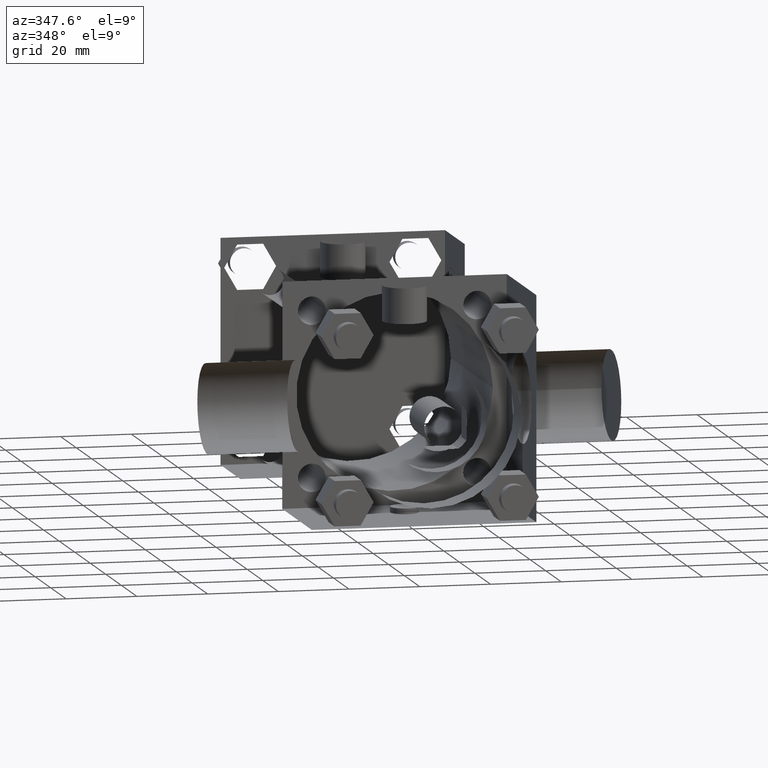
[diagram: clean part render]
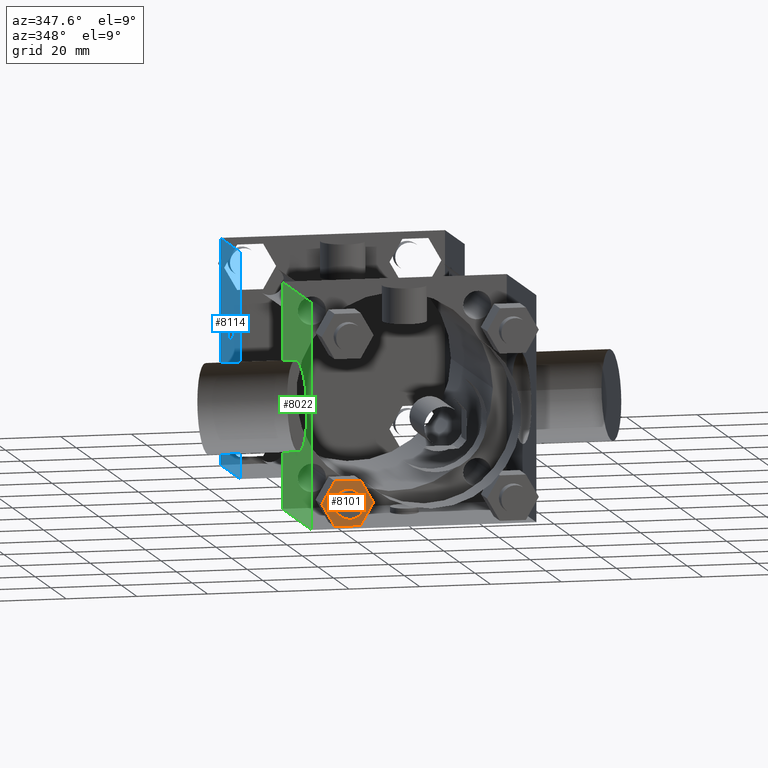
[diagram: same view with three faces highlighted in distinct colors, each labeled with its STEP entity id]
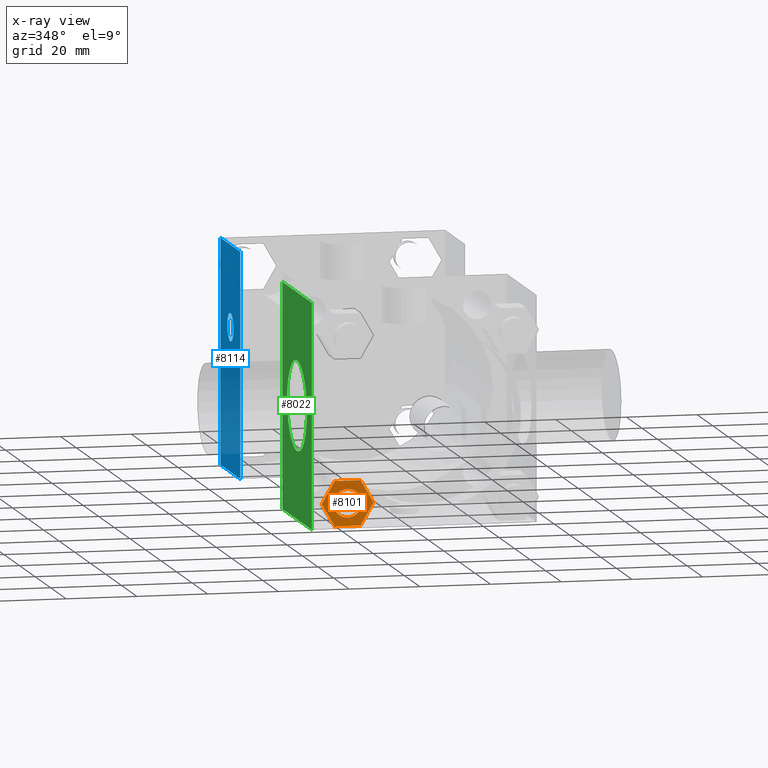
[diagram: x-ray of the same camera — body ghosted, the three highlighted faces saturated]
A machine part, auxiliary view with three faces highlighted in distinct colors.
The next image is the same camera in x-ray (body ghosted, the three faces saturated) — at least one of them is partly hidden behind the body in this view.
Their STEP definitions:

[orange] entity #8101 — the highlighted planar face has unit normal (0, -1, 0).
#4127=FACE_OUTER_BOUND('',#4129,.T.);
#4128=FACE_BOUND('',#4130,.T.);
#4129=EDGE_LOOP('',(#4131,#4132,#4133,#4134,#4135,#4136));
#4130=EDGE_LOOP('',(#4179));
#4131=ORIENTED_EDGE('',*,*,#4137,.T.);
#4132=ORIENTED_EDGE('',*,*,#4146,.T.);
#4133=ORIENTED_EDGE('',*,*,#4153,.T.);
#4134=ORIENTED_EDGE('',*,*,#4160,.T.);
#4135=ORIENTED_EDGE('',*,*,#4167,.T.);
#4136=ORIENTED_EDGE('',*,*,#4174,.T.);
#4137=EDGE_CURVE('',#4142,#4143,#4138,.T.);
#4138=LINE('',#4139,#4140);
#4139=CARTESIAN_POINT('',(-3.070034655E+001,1.746250000E+001,-2.336800000E+001));
#4140=VECTOR('',#4141,1.0E+000);
#4141=DIRECTION('',(5.0E-001,0.0E+000,-8.66025403784439E-001));
#4142=VERTEX_POINT('',#4144);
#4143=VERTEX_POINT('',#4145);
#4144=CARTESIAN_POINT('',(-3.070034655E+001,1.746250000E+001,-2.336800000E+001));
#4145=CARTESIAN_POINT('',(-2.703417889E+001,1.746250000E+001,-2.971799514E+001));
#4146=EDGE_CURVE('',#4143,#4151,#4147,.T.);
#4147=LINE('',#4148,#4149);
#4148=CARTESIAN_POINT('',(-2.703417889E+001,1.746250000E+001,-2.971799514E+001));
#4149=VECTOR('',#4150,1.0E+000);
#4150=DIRECTION('',(1.0E+000,0.0E+000,0.0E+000));
#4151=VERTEX_POINT('',#4152);
#4152=CARTESIAN_POINT('',(-1.970182111E+001,1.746250000E+001,-2.971799514E+001));
#4153=EDGE_CURVE('',#4151,#4158,#4154,.T.);
#4154=LINE('',#4155,#4156);
#4155=CARTESIAN_POINT('',(-1.970182111E+001,1.746250000E+001,-2.971799514E+001));
#4156=VECTOR('',#4157,1.0E+000);
#4157=DIRECTION('',(5.0E-001,0.0E+000,8.66025403784439E-001));
#4158=VERTEX_POINT('',#4159);
#4159=CARTESIAN_POINT('',(-1.603565345E+001,1.746250000E+001,-2.336800000E+001));
#4160=EDGE_CURVE('',#4158,#4165,#4161,.T.);
#4161=LINE('',#4162,#4163);
#4162=CARTESIAN_POINT('',(-1.603565345E+001,1.746250000E+001,-2.336800000E+001));
#4163=VECTOR('',#4164,1.0E+000);
#4164=DIRECTION('',(-5.0E-001,0.0E+000,8.66025403784439E-001));
#4165=VERTEX_POINT('',#4166);
#4166=CARTESIAN_POINT('',(-1.970182111E+001,1.746250000E+001,-1.701800486E+001));
#4167=EDGE_CURVE('',#4165,#4172,#4168,.T.);
#4168=LINE('',#4169,#4170);
#4169=CARTESIAN_POINT('',(-1.970182111E+001,1.746250000E+001,-1.701800486E+001));
#4170=VECTOR('',#4171,1.0E+000);
#4171=DIRECTION('',(-1.0E+000,0.0E+000,0.0E+000));
#4172=VERTEX_POINT('',#4173);
#4173=CARTESIAN_POINT('',(-2.703417889E+001,1.746250000E+001,-1.701800486E+001));
#4174=EDGE_CURVE('',#4172,#4142,#4175,.T.);
#4175=LINE('',#4176,#4177);
#4176=CARTESIAN_POINT('',(-2.703417889E+001,1.746250000E+001,-1.701800486E+001));
#4177=VECTOR('',#4178,1.0E+000);
#4178=DIRECTION('',(-5.0E-001,0.0E+000,-8.66025403784439E-001));
#4179=ORIENTED_EDGE('',*,*,#4180,.T.);
#4180=EDGE_CURVE('',#4186,#4186,#4181,.T.);
#4181=CIRCLE('',#4182,3.968750000E+000);
#4182=AXIS2_PLACEMENT_3D('',#4183,#4184,#4185);
#4183=CARTESIAN_POINT('',(-2.336800000E+001,1.746250000E+001,-2.336800000E+001));
#4184=DIRECTION('',(0.0E+000,1.0E+000,0.0E+000));
#4185=DIRECTION('',(1.0E+000,0.0E+000,0.0E+000));
#4186=VERTEX_POINT('',#4187);
#4187=CARTESIAN_POINT('',(-1.939925000E+001,1.746250000E+001,-2.336800000E+001));
#4188=PLANE('',#4189);
#4189=AXIS2_PLACEMENT_3D('',#4190,#4191,#4192);
#4190=CARTESIAN_POINT('',(-2.703417889E+001,1.746250000E+001,-2.971799514E+001));
#4191=DIRECTION('',(0.0E+000,-1.0E+000,0.0E+000));
#4192=DIRECTION('',(0.0E+000,0.0E+000,-1.0E+000));
#8101=ADVANCED_FACE('',(#4127,#4128),#4188,.T.);

[blue] entity #8114 — the highlighted planar face has unit normal (-1, 0, 0).
#4474=VERTEX_POINT('',#4476);
#4476=CARTESIAN_POINT('',(-3.175000000E+001,1.428750000E+002,-3.175000000E+001));
#4478=EDGE_CURVE('',#4483,#4474,#4479,.T.);
#4479=LINE('',#4480,#4481);
#4480=CARTESIAN_POINT('',(-3.175000000E+001,1.428750000E+002,3.175000000E+001));
#4481=VECTOR('',#4482,1.0E+000);
#4482=DIRECTION('',(0.0E+000,0.0E+000,-1.0E+000));
#4483=VERTEX_POINT('',#4484);
#4484=CARTESIAN_POINT('',(-3.175000000E+001,1.428750000E+002,3.175000000E+001));
#4647=VERTEX_POINT('',#4649);
#4649=CARTESIAN_POINT('',(-3.175000000E+001,1.174750000E+002,-3.175000000E+001));
#4663=VERTEX_POINT('',#4664);
#4664=CARTESIAN_POINT('',(-3.175000000E+001,1.174750000E+002,3.175000000E+001));
#4665=EDGE_CURVE('',#4663,#4647,#4666,.T.);
#4666=LINE('',#4667,#4668);
#4667=CARTESIAN_POINT('',(-3.175000000E+001,1.174750000E+002,3.175000000E+001));
#4668=VECTOR('',#4669,1.0E+000);
#4669=DIRECTION('',(0.0E+000,0.0E+000,-1.0E+000));
#4692=EDGE_CURVE('',#4474,#4647,#4693,.T.);
#4693=LINE('',#4694,#4695);
#4694=CARTESIAN_POINT('',(-3.175000000E+001,1.428750000E+002,-3.175000000E+001));
#4695=VECTOR('',#4696,1.0E+000);
#4696=DIRECTION('',(0.0E+000,-1.0E+000,0.0E+000));
#4729=EDGE_CURVE('',#4483,#4663,#4730,.T.);
#4730=LINE('',#4731,#4732);
#4731=CARTESIAN_POINT('',(-3.175000000E+001,1.428750000E+002,3.175000000E+001));
#4732=VECTOR('',#4733,1.0E+000);
#4733=DIRECTION('',(0.0E+000,-1.0E+000,0.0E+000));
#4748=FACE_OUTER_BOUND('',#4750,.T.);
#4749=FACE_BOUND('',#4751,.T.);
#4750=EDGE_LOOP('',(#4752,#4753,#4754,#4755));
#4751=EDGE_LOOP('',(#4756));
#4752=ORIENTED_EDGE('',*,*,#4665,.F.);
#4753=ORIENTED_EDGE('',*,*,#4729,.F.);
#4754=ORIENTED_EDGE('',*,*,#4478,.T.);
#4755=ORIENTED_EDGE('',*,*,#4692,.T.);
#4756=ORIENTED_EDGE('',*,*,#4757,.T.);
#4757=EDGE_CURVE('',#4763,#4763,#4758,.T.);
#4758=CIRCLE('',#4759,3.968750000E+000);
#4759=AXIS2_PLACEMENT_3D('',#4760,#4761,#4762);
#4760=CARTESIAN_POINT('',(-3.175000000E+001,1.301750000E+002,8.732520000E+000));
#4761=DIRECTION('',(1.0E+000,0.0E+000,0.0E+000));
#4762=DIRECTION('',(0.0E+000,-1.0E+000,0.0E+000));
#4763=VERTEX_POINT('',#4764);
#4764=CARTESIAN_POINT('',(-3.175000000E+001,1.262062500E+002,8.732520000E+000));
#4765=PLANE('',#4766);
#4766=AXIS2_PLACEMENT_3D('',#4767,#4768,#4769);
#4767=CARTESIAN_POINT('',(-3.175000000E+001,1.428750000E+002,3.175000000E+001));
#4768=DIRECTION('',(-1.0E+000,0.0E+000,0.0E+000));
#4769=DIRECTION('',(0.0E+000,0.0E+000,1.0E+000));
#8114=ADVANCED_FACE('',(#4748,#4749),#4765,.T.);

[green] entity #8022 — the highlighted planar face has unit normal (-1, 0, 0).
#520=VERTEX_POINT('',#522);
#522=CARTESIAN_POINT('',(-3.175000000E+001,6.350000000E+001,-3.175000000E+001));
#524=EDGE_CURVE('',#529,#520,#525,.T.);
#525=LINE('',#526,#527);
#526=CARTESIAN_POINT('',(-3.175000000E+001,6.350000000E+001,3.175000000E+001));
#527=VECTOR('',#528,1.0E+000);
#528=DIRECTION('',(0.0E+000,0.0E+000,-1.0E+000));
#529=VERTEX_POINT('',#530);
#530=CARTESIAN_POINT('',(-3.175000000E+001,6.350000000E+001,3.175000000E+001));
#604=VERTEX_POINT('',#605);
#605=CARTESIAN_POINT('',(-3.175000000E+001,2.540000000E+001,-3.175000000E+001));
#606=EDGE_CURVE('',#520,#604,#607,.T.);
#607=LINE('',#608,#609);
#608=CARTESIAN_POINT('',(-3.175000000E+001,6.350000000E+001,-3.175000000E+001));
#609=VECTOR('',#610,1.0E+000);
#610=DIRECTION('',(0.0E+000,-1.0E+000,0.0E+000));
#633=EDGE_CURVE('',#529,#638,#634,.T.);
#634=LINE('',#635,#636);
#635=CARTESIAN_POINT('',(-3.175000000E+001,6.350000000E+001,3.175000000E+001));
#636=VECTOR('',#637,1.0E+000);
#637=DIRECTION('',(0.0E+000,-1.0E+000,0.0E+000));
#638=VERTEX_POINT('',#639);
#639=CARTESIAN_POINT('',(-3.175000000E+001,2.540000000E+001,3.175000000E+001));
#666=FACE_OUTER_BOUND('',#668,.T.);
#667=FACE_BOUND('',#669,.T.);
#668=EDGE_LOOP('',(#670,#671,#672,#673));
#669=EDGE_LOOP('',(#679));
#670=ORIENTED_EDGE('',*,*,#524,.T.);
#671=ORIENTED_EDGE('',*,*,#606,.T.);
#672=ORIENTED_EDGE('',*,*,#674,.F.);
#673=ORIENTED_EDGE('',*,*,#633,.F.);
#674=EDGE_CURVE('',#638,#604,#675,.T.);
#675=LINE('',#676,#677);
#676=CARTESIAN_POINT('',(-3.175000000E+001,2.540000000E+001,3.175000000E+001));
#677=VECTOR('',#678,1.0E+000);
#678=DIRECTION('',(0.0E+000,0.0E+000,-1.0E+000));
#679=ORIENTED_EDGE('',*,*,#680,.T.);
#680=EDGE_CURVE('',#686,#686,#681,.T.);
#681=CIRCLE('',#682,1.270000000E+001);
#682=AXIS2_PLACEMENT_3D('',#683,#684,#685);
#683=CARTESIAN_POINT('',(-3.175000000E+001,4.445000000E+001,0.000000000E+000));
#684=DIRECTION('',(1.0E+000,0.0E+000,0.0E+000));
#685=DIRECTION('',(0.0E+000,-1.0E+000,0.0E+000));
#686=VERTEX_POINT('',#687);
#687=CARTESIAN_POINT('',(-3.175000000E+001,3.175000000E+001,0.000000000E+000));
#688=PLANE('',#689);
#689=AXIS2_PLACEMENT_3D('',#690,#691,#692);
#690=CARTESIAN_POINT('',(-3.175000000E+001,6.350000000E+001,3.175000000E+001));
#691=DIRECTION('',(-1.0E+000,0.0E+000,0.0E+000));
#692=DIRECTION('',(0.0E+000,0.0E+000,1.0E+000));
#8022=ADVANCED_FACE('',(#666,#667),#688,.T.);